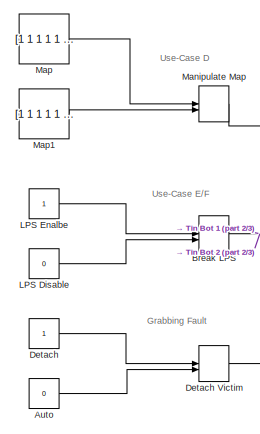
[diagram: root canvas - part 1/3, top left region]
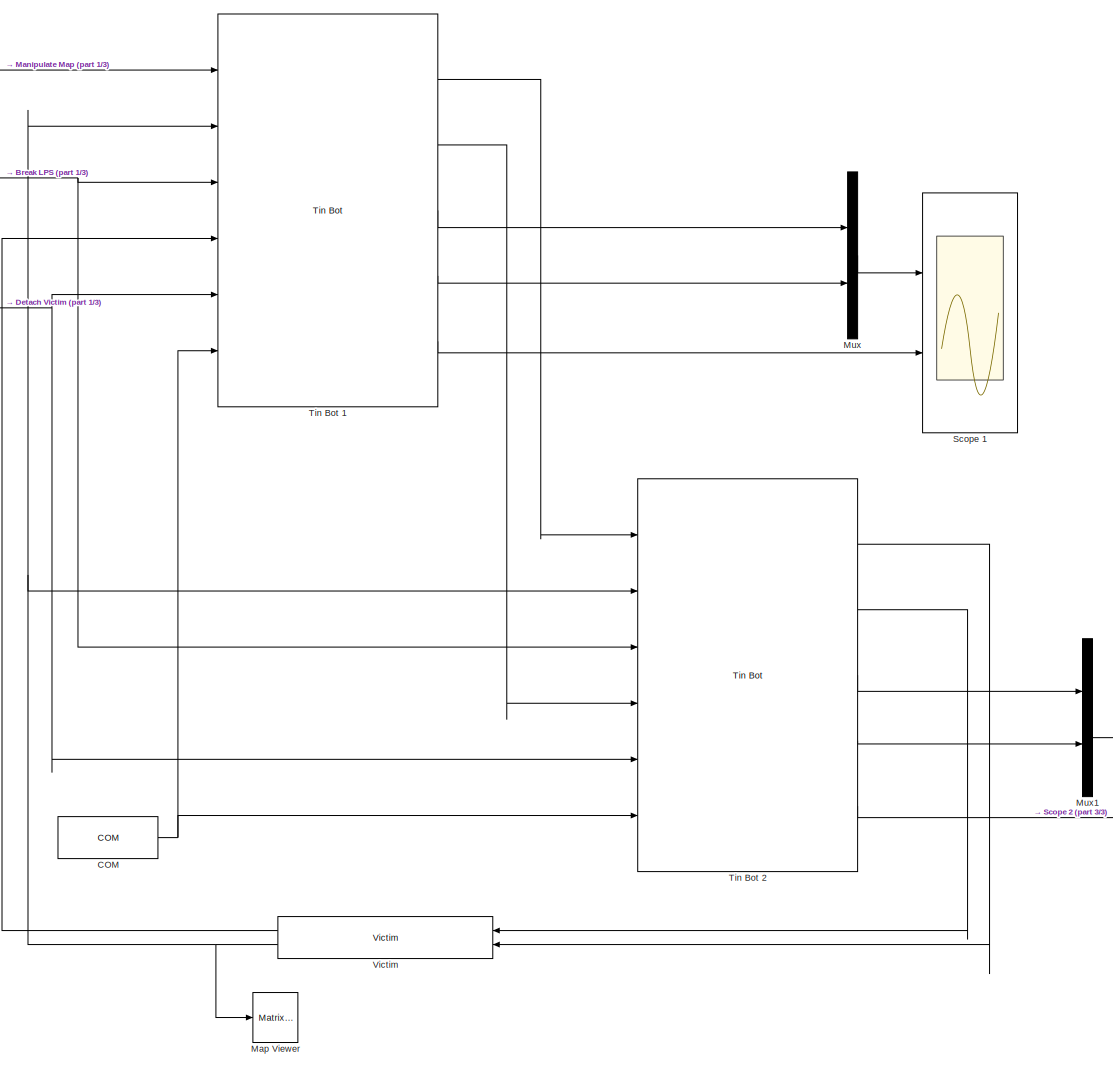
[diagram: root canvas - part 2/3, center side, full height]
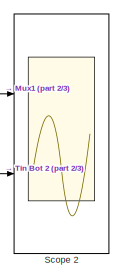
[diagram: root canvas - part 3/3, bottom right region]
MODEL slx_685757264f9c
KIND model
CONFIG AbsTol = auto
CONFIG FixedStep = 0.02
CONFIG MaxStep = auto
CONFIG MinStep = auto
CONFIG RelTol = 1e-3
CONFIG SampleTimeConstraint = Unconstrained
CONFIG Solver = FixedStepAuto
CONFIG SolverMode = Auto
CONFIG SolverName = FixedStepAuto
CONFIG StartTime = 0.0
CONFIG StopTime = inf
BLOCK [Constant] Auto
  Value = 0
BLOCK [ManualSwitch] Break LPS
BLOCK [Reference] COM  REF=tinbot/COM  (lib defined in slx_3c5c153e9850, slx_5b2796442827, +1 more)
  Ports = [0, 1]
  SourceBlock = tinbot/COM
BLOCK [Constant] Detach
BLOCK [ManualSwitch] Detach Victim
  CurrentSetting = 0
BLOCK [Constant] LPS Disable
  Value = 0
BLOCK [Constant] LPS Enalbe
BLOCK [ManualSwitch] Manipulate Map
BLOCK [Constant] Map
  Value = [1 1 1 1 1 1 1 1 1 1 1 1 1 1 1 1 1 1 1 1 1 1 1 1 1 1 1 1 1 1 1 1 1 1 1 1 1 1 1 1 1 1 1 1 1 1 1 1 1 1 1 1 1 1 1 1 1 1 1 1 1 1 1 1 1 1 1 1 1 1 1 1 1 1 1 1 1 1 1 1 1 1 1 1 1 1 1 1 1 1 1 1 1 1 1 1 1 1 1 1;1 1 1 1 1 1 1 1 1 1 1 1 1 1 1 1 1 1 1 1 1 1 1 1 1 1 1 1 1 1 1 1 1 1 1 1 1 1 1 1 1 1 1 1 1 1 1 1 1 1 1 1 1 1 1 1 1 1 1 1 1 1 1 1 1 1 1 1 1 1 1 1 1 1 1 1 1 1 1 1 1 1 1 1 1 1 1 1 1 1 1 1 1 1 1 1 1 1 1 1...<+19601ch>
BLOCK [Reference] Map Viewer  REF=dspsnks4/Matrix
Viewer
  Ports = [1]
  SourceBlock = dspsnks4/Matrix\nViewer
  SourceType = Matrix Viewer
BLOCK [Constant] Map1
  Value = [1 1 1 1 1 1 1 1 1 1 1 1 1 1 1 1 1 1 1 1 1 1 1 1 1 1 1 1 1 1 1 1 1 1 1 1 1 1 1 1 1 1 1 1 1 1 1 1 1 1 1 1 1 1 1 1 1 1 1 1 1 1 1 1 1 1 1 1 1 1 1 1 1 1 1 1 1 1 1 1 1 1 1 1 1 1 1 1 1 1 1 1 1 1 1 1 1 1 1 1;1 1 1 1 1 1 1 1 1 1 1 1 1 1 1 1 1 1 1 1 1 1 1 1 1 1 1 1 1 1 1 1 1 1 1 1 1 1 1 1 1 1 1 1 1 1 1 1 1 1 1 1 1 1 1 1 1 1 1 1 1 1 1 1 1 1 1 1 1 1 1 1 1 1 1 1 1 1 1 1 1 1 1 1 1 1 1 1 1 1 1 1 1 1 1 1 1 1 1 1...<+19601ch>
BLOCK [Mux] Mux
  DisplayOption = bar
  Inputs = 2
  Ports = [2, 1]
BLOCK [Mux] Mux1
  DisplayOption = bar
  Inputs = 2
  Ports = [2, 1]
BLOCK [Scope] Scope 1
  NumInputPorts = 2
  Ports = [2]
  ScopeSpecificationString = Simulink.scopes.TimeScopeBlockCfg('CurrentConfiguration', extmgr.ConfigurationSet(extmgr.Configuration('Core','General UI',true),extmgr.Configuration('Core','Source UI',true),extmgr.Configuration('Sources','WiredSimulink',true),extmgr.Configuration('Visuals','Time Domain',true,'SerializedDisplays',{struct('MinYLimReal','-1.375','MaxYLimReal','2.375','YLabelReal','','MinYLimMag','0.00000','MaxYLimM...<+3283ch>
BLOCK [Scope] Scope 2
  NumInputPorts = 2
  Ports = [2]
  ScopeSpecificationString = Simulink.scopes.TimeScopeBlockCfg('CurrentConfiguration', extmgr.ConfigurationSet(extmgr.Configuration('Core','General UI',true),extmgr.Configuration('Core','Source UI',true),extmgr.Configuration('Sources','WiredSimulink',true,'DataLoggingVariableName','ScopeData1'),extmgr.Configuration('Visuals','Time Domain',true,'SerializedDisplays',{struct('MinYLimReal','-1.125','MaxYLimReal','0.125','YLabelRe...<+2992ch>
BLOCK [Reference] Tin Bot 1  REF=tinbot/Tin Bot  (lib defined in slx_3c5c153e9850, slx_5b2796442827, +1 more)
  Ports = [6, 5]
  SourceBlock = tinbot/Tin Bot
BLOCK [Reference] Tin Bot 2  REF=tinbot/Tin Bot  (lib defined in slx_3c5c153e9850, slx_5b2796442827, +1 more)
  Ports = [6, 5]
  SourceBlock = tinbot/Tin Bot
BLOCK [Reference] Victim  REF=tinbot/Victim  (lib defined in slx_3c5c153e9850, slx_5b2796442827, +1 more)
  Ports = [2, 2]
  SourceBlock = tinbot/Victim
ANNOTATION (root): Grabbing Fault
ANNOTATION (root): Use-Case D
ANNOTATION (root): Use-Case E/F
LINE Auto:1 -> Detach Victim:2
NET Break LPS:1 -> Tin Bot 1:3, Tin Bot 2:3
NET COM:1 -> Tin Bot 1:6, Tin Bot 2:6
NET Detach Victim:1 -> Tin Bot 1:5, Tin Bot 2:5
LINE Detach:1 -> Detach Victim:1
LINE LPS Disable:1 -> Break LPS:2
LINE LPS Enalbe:1 -> Break LPS:1
LINE Manipulate Map:1 -> Tin Bot 1:1
LINE Map1:1 -> Manipulate Map:2
LINE Map:1 -> Manipulate Map:1
LINE Mux1:1 -> Scope 2:1
LINE Mux:1 -> Scope 1:1
LINE Tin Bot 1:1 -> Tin Bot 2:1
LINE Tin Bot 1:2 -> Tin Bot 2:4
LINE Tin Bot 1:3 -> Mux:1
LINE Tin Bot 1:4 -> Mux:2
LINE Tin Bot 1:5 -> Scope 1:2
LINE Tin Bot 2:1 -> Victim:2
LINE Tin Bot 2:2 -> Victim:1
LINE Tin Bot 2:3 -> Mux1:1
LINE Tin Bot 2:4 -> Mux1:2
LINE Tin Bot 2:5 -> Scope 2:2
LINE Victim:1 -> Tin Bot 1:4
NET Victim:2 -> Map Viewer:1, Tin Bot 1:2, Tin Bot 2:2
note: NET lines group one-source signal fan-out (src -> all destinations, sorted); 1:1 wires keep LINE
